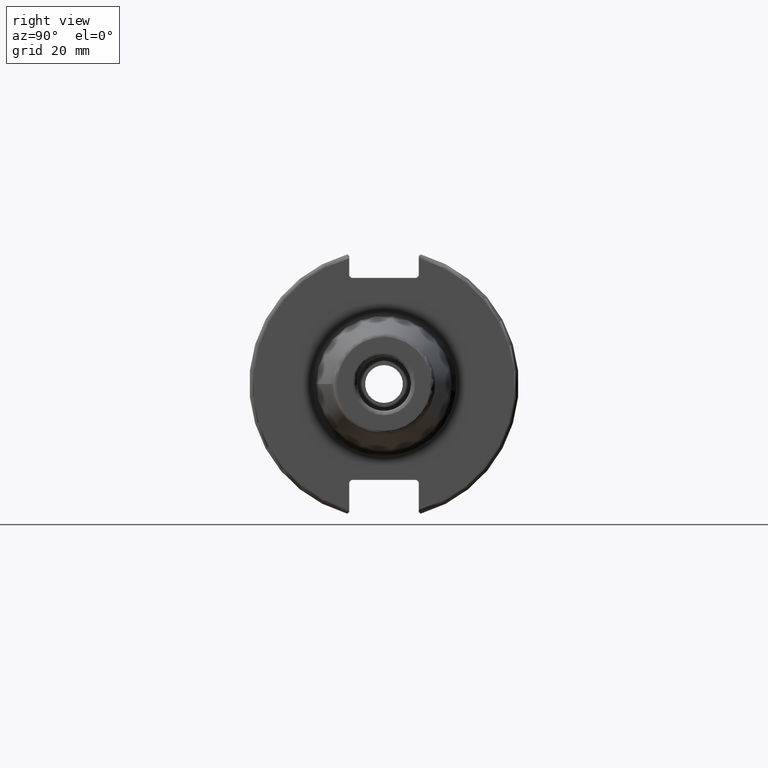
[diagram: clean part render]
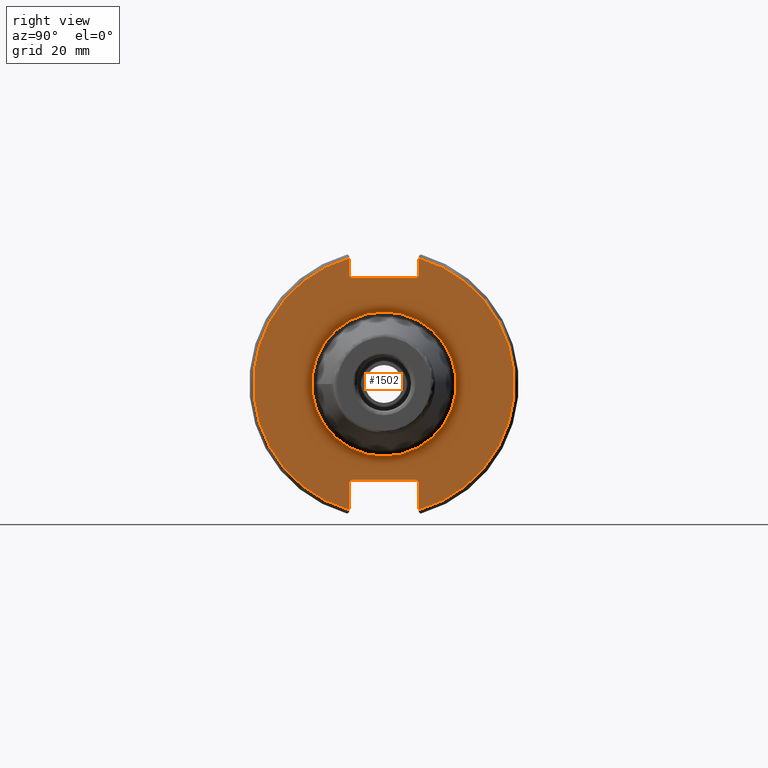
[diagram: same view with one face highlighted and labeled with its STEP entity id]
A machine part, right view. The second image highlights one B-rep face of the part: STEP entity #1502.
In plain terms, the highlighted planar face has unit normal (1, 0, 0).
Its self-contained STEP definition (entity closure, byte-faithful):
#111=LINE('',#2289,#205);
#112=LINE('',#2291,#206);
#113=LINE('',#2293,#207);
#114=LINE('',#2295,#208);
#115=LINE('',#2297,#209);
#116=LINE('',#2301,#210);
#117=LINE('',#2303,#211);
#118=LINE('',#2305,#212);
#119=LINE('',#2307,#213);
#120=LINE('',#2308,#214);
#205=VECTOR('',#1839,10.);
#206=VECTOR('',#1840,10.);
#207=VECTOR('',#1841,10.);
#208=VECTOR('',#1842,10.);
#209=VECTOR('',#1843,10.);
#210=VECTOR('',#1846,10.);
#211=VECTOR('',#1847,10.);
#212=VECTOR('',#1848,10.);
#213=VECTOR('',#1849,10.);
#214=VECTOR('',#1850,10.);
#310=FACE_BOUND('',#459,.T.);
#326=PLANE('',#1627);
#369=FACE_OUTER_BOUND('',#458,.T.);
#458=EDGE_LOOP('',(#1050,#1051,#1052,#1053,#1054,#1055,#1056,#1057,#1058,
#1059,#1060,#1061));
#459=EDGE_LOOP('',(#1062));
#566=CIRCLE('',#1624,17.);
#568=CIRCLE('',#1628,30.75);
#569=CIRCLE('',#1629,30.75);
#640=VERTEX_POINT('',#2278);
#641=VERTEX_POINT('',#2285);
#642=VERTEX_POINT('',#2286);
#643=VERTEX_POINT('',#2288);
#644=VERTEX_POINT('',#2290);
#645=VERTEX_POINT('',#2292);
#646=VERTEX_POINT('',#2294);
#647=VERTEX_POINT('',#2296);
#648=VERTEX_POINT('',#2298);
#649=VERTEX_POINT('',#2300);
#650=VERTEX_POINT('',#2302);
#651=VERTEX_POINT('',#2304);
#652=VERTEX_POINT('',#2306);
#798=EDGE_CURVE('',#640,#640,#566,.T.);
#801=EDGE_CURVE('',#641,#642,#568,.T.);
#802=EDGE_CURVE('',#641,#643,#111,.T.);
#803=EDGE_CURVE('',#644,#643,#112,.T.);
#804=EDGE_CURVE('',#644,#645,#113,.T.);
#805=EDGE_CURVE('',#646,#645,#114,.T.);
#806=EDGE_CURVE('',#646,#647,#115,.T.);
#807=EDGE_CURVE('',#648,#647,#569,.T.);
#808=EDGE_CURVE('',#648,#649,#116,.T.);
#809=EDGE_CURVE('',#650,#649,#117,.T.);
#810=EDGE_CURVE('',#650,#651,#118,.T.);
#811=EDGE_CURVE('',#652,#651,#119,.T.);
#812=EDGE_CURVE('',#652,#642,#120,.T.);
#1050=ORIENTED_EDGE('',*,*,#801,.F.);
#1051=ORIENTED_EDGE('',*,*,#802,.T.);
#1052=ORIENTED_EDGE('',*,*,#803,.F.);
#1053=ORIENTED_EDGE('',*,*,#804,.T.);
#1054=ORIENTED_EDGE('',*,*,#805,.F.);
#1055=ORIENTED_EDGE('',*,*,#806,.T.);
#1056=ORIENTED_EDGE('',*,*,#807,.F.);
#1057=ORIENTED_EDGE('',*,*,#808,.T.);
#1058=ORIENTED_EDGE('',*,*,#809,.F.);
#1059=ORIENTED_EDGE('',*,*,#810,.T.);
#1060=ORIENTED_EDGE('',*,*,#811,.F.);
#1061=ORIENTED_EDGE('',*,*,#812,.T.);
#1062=ORIENTED_EDGE('',*,*,#798,.F.);
#1502=ADVANCED_FACE('',(#369,#310),#326,.T.);
#1624=AXIS2_PLACEMENT_3D('',#2280,#1828,#1829);
#1627=AXIS2_PLACEMENT_3D('',#2284,#1835,#1836);
#1628=AXIS2_PLACEMENT_3D('',#2287,#1837,#1838);
#1629=AXIS2_PLACEMENT_3D('',#2299,#1844,#1845);
#1828=DIRECTION('center_axis',(1.,0.,0.));
#1829=DIRECTION('ref_axis',(0.,-1.,-1.22464679914735E-16));
#1835=DIRECTION('center_axis',(1.,0.,0.));
#1836=DIRECTION('ref_axis',(0.,0.,-1.));
#1837=DIRECTION('center_axis',(-1.,0.,0.));
#1838=DIRECTION('ref_axis',(0.,1.,-6.12323399573677E-17));
#1839=DIRECTION('',(0.,0.,-1.));
#1840=DIRECTION('',(0.,0.707106781186549,0.707106781186546));
#1841=DIRECTION('',(0.,-1.,0.));
#1842=DIRECTION('',(0.,0.70710678118655,-0.707106781186545));
#1843=DIRECTION('',(0.,0.,1.));
#1844=DIRECTION('center_axis',(-1.,0.,0.));
#1845=DIRECTION('ref_axis',(0.,-1.,1.60812264967664E-16));
#1846=DIRECTION('',(0.,0.,1.));
#1847=DIRECTION('',(0.,-0.707106781186549,-0.707106781186546));
#1848=DIRECTION('',(0.,1.,0.));
#1849=DIRECTION('',(0.,-0.707106781186549,0.707106781186546));
#1850=DIRECTION('',(0.,0.,-1.));
#2278=CARTESIAN_POINT('',(19.05,-2.0818995585505E-15,-17.));
#2280=CARTESIAN_POINT('Origin',(19.05,0.,0.));
#2284=CARTESIAN_POINT('Origin',(19.05,0.,0.));
#2285=CARTESIAN_POINT('',(19.05,8.19,29.6392712461019));
#2286=CARTESIAN_POINT('',(19.05,8.19,-29.6392712461019));
#2287=CARTESIAN_POINT('Origin',(19.05,0.,0.));
#2288=CARTESIAN_POINT('',(19.05,8.19,25.5));
#2289=CARTESIAN_POINT('',(19.05,8.19,12.5));
#2290=CARTESIAN_POINT('',(19.05,7.69,25.));
#2291=CARTESIAN_POINT('',(19.05,-0.35750000000001,16.9525));
#2292=CARTESIAN_POINT('',(19.05,-7.69,25.));
#2293=CARTESIAN_POINT('',(19.05,0.,25.));
#2294=CARTESIAN_POINT('',(19.05,-8.19,25.5));
#2295=CARTESIAN_POINT('',(19.05,0.357500000000014,16.9525));
#2296=CARTESIAN_POINT('',(19.05,-8.19,29.6392712461019));
#2297=CARTESIAN_POINT('',(19.05,-8.19,12.5));
#2298=CARTESIAN_POINT('',(19.05,-8.19,-29.6392712461019));
#2299=CARTESIAN_POINT('Origin',(19.05,0.,0.));
#2300=CARTESIAN_POINT('',(19.05,-8.19,-23.1));
#2301=CARTESIAN_POINT('',(19.05,-8.19,-11.3));
#2302=CARTESIAN_POINT('',(19.05,-7.69,-22.6));
#2303=CARTESIAN_POINT('',(19.05,-0.242499999999991,-15.1525));
#2304=CARTESIAN_POINT('',(19.05,7.69,-22.6));
#2305=CARTESIAN_POINT('',(19.05,-2.77555756156289E-16,-22.6));
#2306=CARTESIAN_POINT('',(19.05,8.19,-23.1));
#2307=CARTESIAN_POINT('',(19.05,0.242499999999989,-15.1525));
#2308=CARTESIAN_POINT('',(19.05,8.19,-11.3));